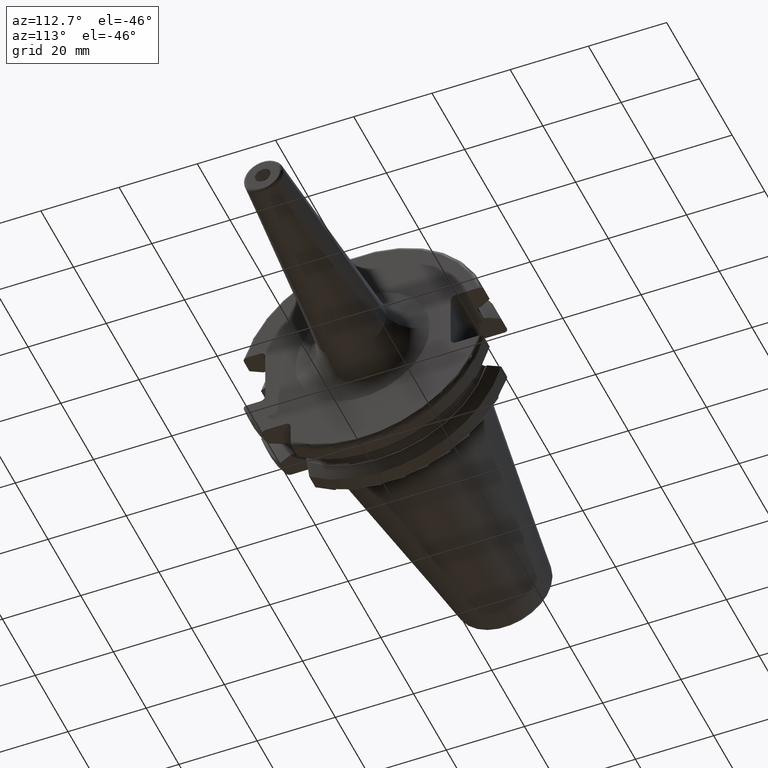
[diagram: clean part render]
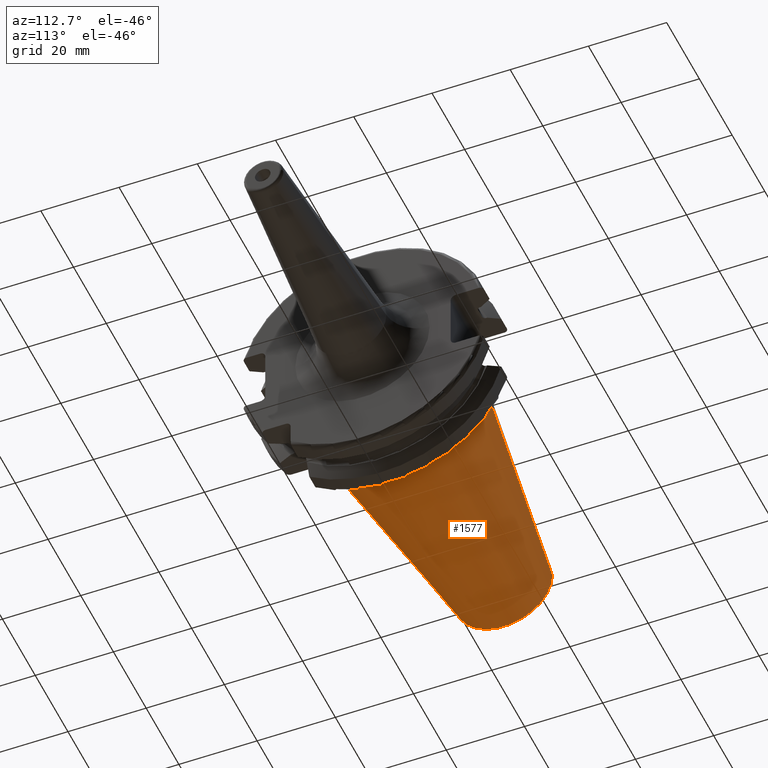
[diagram: same view with one face highlighted and labeled with its STEP entity id]
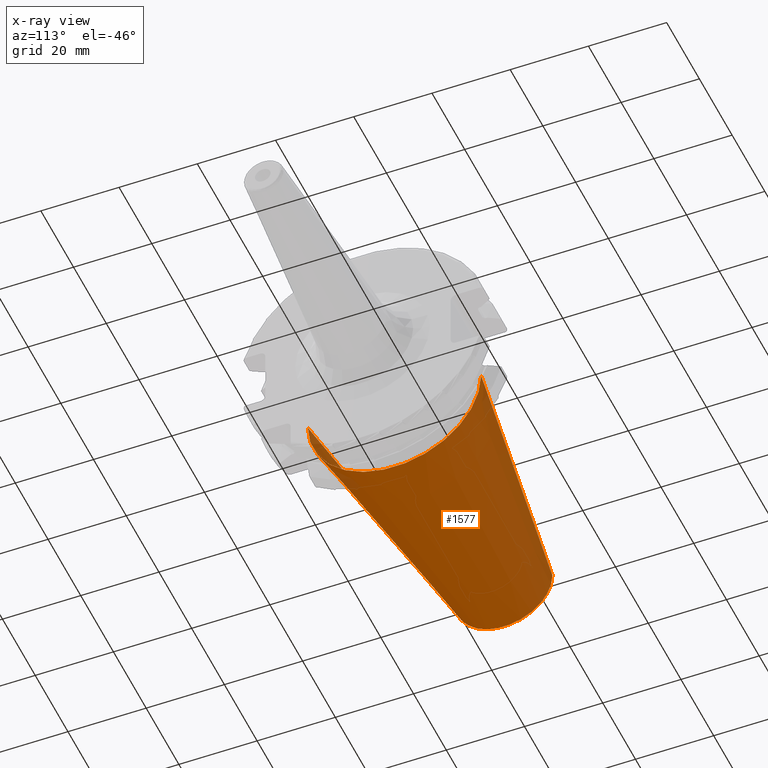
[diagram: x-ray of the same camera — body ghosted, the highlighted face saturated]
A machine part, auxiliary view. The second image highlights one B-rep face of the part: STEP entity #1577.
The next image is the same camera in x-ray: the body ghosted, the highlighted face saturated — about 3% of this face is hidden behind the body in this view.
In plain terms, the highlighted conical surface has half-angle 8.298 deg.
Its self-contained STEP definition (entity closure, byte-faithful):
#32=CARTESIAN_POINT('',(-6.743710273571E1,0.E0,0.E0));
#33=DIRECTION('',(-1.E0,0.E0,0.E0));
#34=DIRECTION('',(0.E0,1.E0,0.E0));
#35=AXIS2_PLACEMENT_3D('',#32,#33,#34);
#47=DIRECTION('',(-9.895312636440E-1,-1.443186691705E-1,0.E0));
#48=VECTOR('',#47,6.765568998391E1);
#49=CARTESIAN_POINT('',(-4.896823332305E-1,2.215358204157E1,0.E0));
#50=LINE('',#49,#48);
#51=DIRECTION('',(-9.895312636440E-1,1.443186691705E-1,0.E0));
#52=VECTOR('',#51,6.765568998391E1);
#53=CARTESIAN_POINT('',(-4.896823332305E-1,-2.215358204157E1,0.E0));
#54=LINE('',#53,#52);
#55=CARTESIAN_POINT('',(-4.896823332305E-1,0.E0,0.E0));
#56=DIRECTION('',(-1.E0,0.E0,0.E0));
#57=DIRECTION('',(0.E0,1.E0,0.E0));
#58=AXIS2_PLACEMENT_3D('',#55,#56,#57);
#1246=CARTESIAN_POINT('',(-6.743710273571E1,1.238960290128E1,0.E0));
#1248=VERTEX_POINT('',#1246);
#1250=CARTESIAN_POINT('',(-6.743710273571E1,-1.238960290128E1,0.E0));
#1252=VERTEX_POINT('',#1250);
#1314=CARTESIAN_POINT('',(-4.896823332305E-1,2.215358204157E1,0.E0));
#1315=VERTEX_POINT('',#1314);
#1316=CARTESIAN_POINT('',(-4.896823332305E-1,-2.215358204157E1,0.E0));
#1317=VERTEX_POINT('',#1316);
#1565=CARTESIAN_POINT('',(-3.396339253447E1,0.E0,0.E0));
#1566=DIRECTION('',(1.E0,0.E0,0.E0));
#1567=DIRECTION('',(0.E0,-1.E0,0.E0));
#1568=AXIS2_PLACEMENT_3D('',#1565,#1566,#1567);
#1569=CONICAL_SURFACE('',#1568,1.727159247143E1,8.297826828206E0);
#1570=ORIENTED_EDGE('',*,*,#1555,.T.);
#1571=ORIENTED_EDGE('',*,*,#1532,.T.);
#1572=ORIENTED_EDGE('',*,*,#1559,.F.);
#1574=ORIENTED_EDGE('',*,*,#1573,.F.);
#1575=EDGE_LOOP('',(#1570,#1571,#1572,#1574));
#1576=FACE_OUTER_BOUND('',#1575,.F.);
#1577=ADVANCED_FACE('',(#1576),#1569,.T.);
#36=CIRCLE('',#35,1.238960290128E1);
#59=CIRCLE('',#58,2.215358204157E1);
#1532=EDGE_CURVE('',#1248,#1252,#36,.T.);
#1555=EDGE_CURVE('',#1315,#1248,#50,.T.);
#1559=EDGE_CURVE('',#1317,#1252,#54,.T.);
#1573=EDGE_CURVE('',#1315,#1317,#59,.T.);